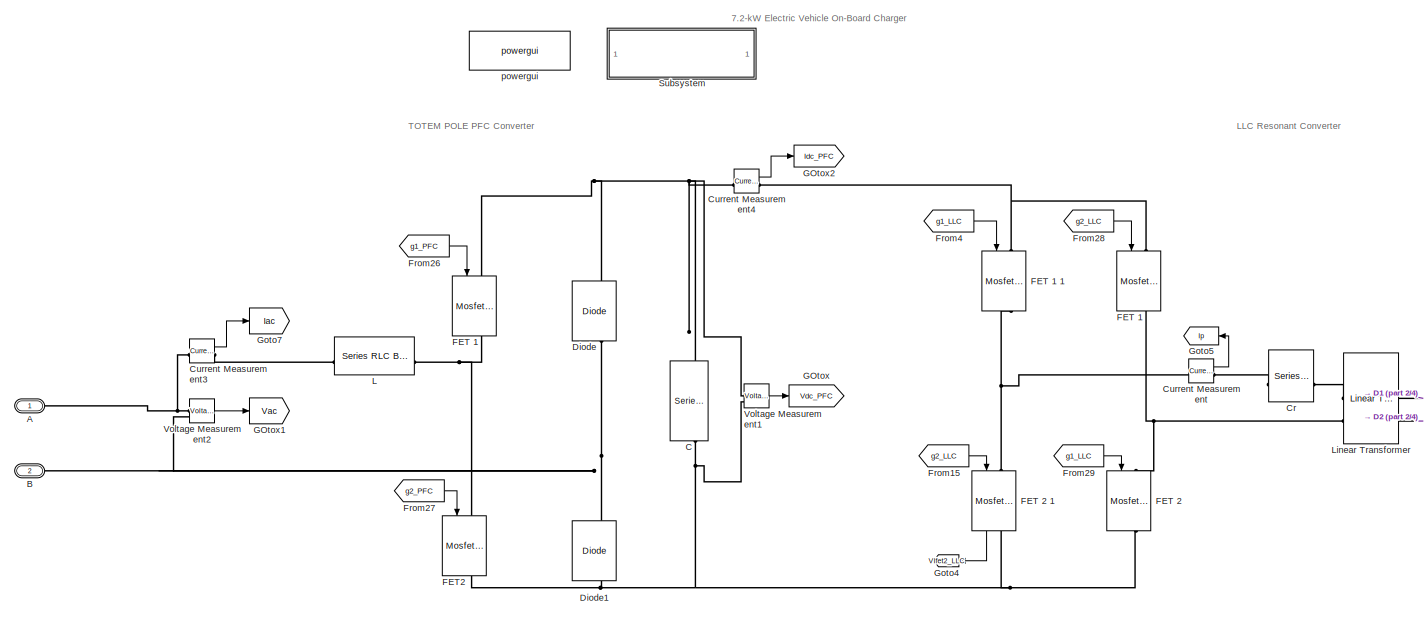
[diagram: root canvas - part 1/4, top left region]
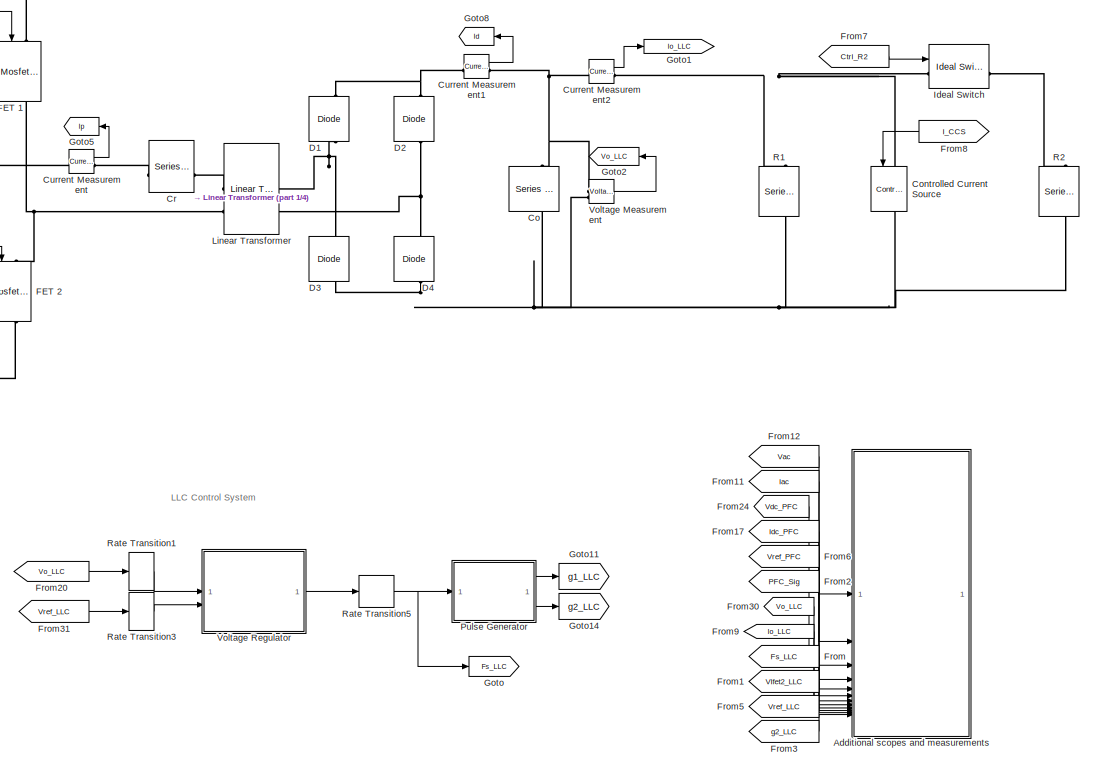
[diagram: root canvas - part 2/4, middle right region]
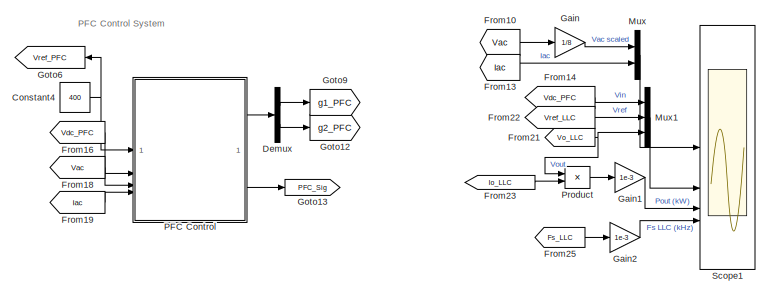
[diagram: root canvas - part 3/4, bottom left region]
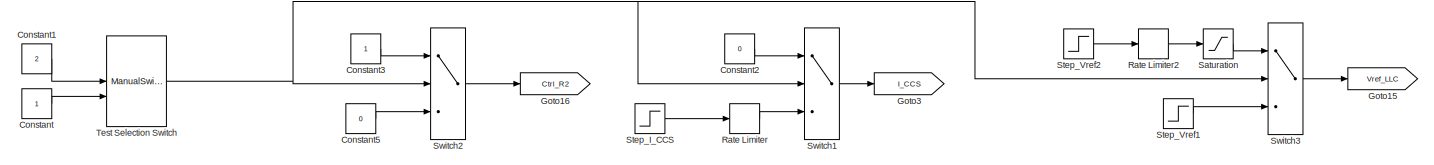
[diagram: root canvas - part 4/4, bottom center region]
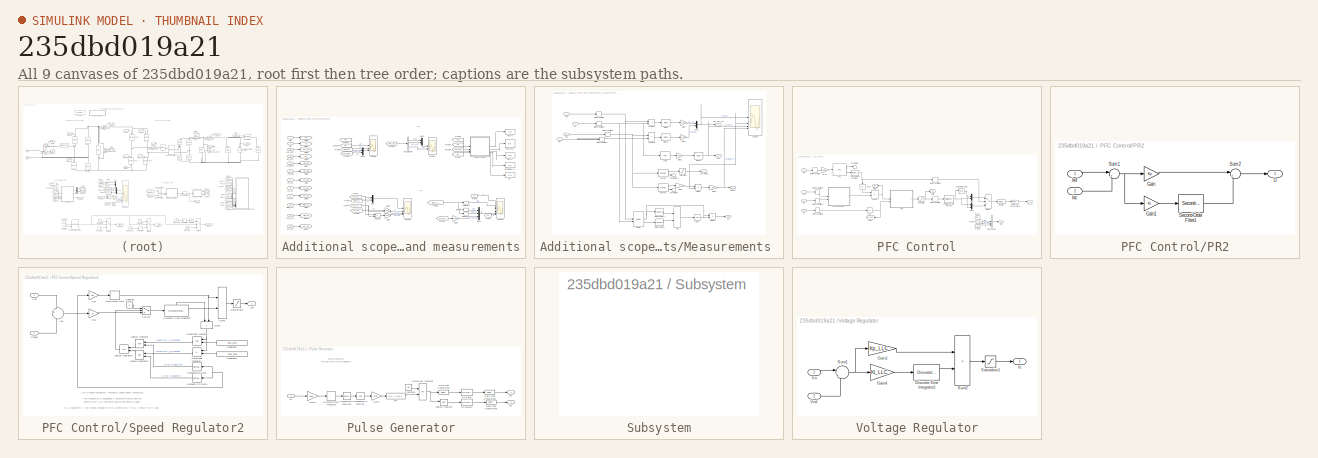
[diagram: thumbnail index - all 9 canvases of the model, root first then tree order]
MODEL slx_235dbd019a21
KIND model
CONFIG AbsTol = auto
CONFIG EnableMultiTasking = on
CONFIG FixedStep = Ts_Power
CONFIG MaxStep = 1e-7
CONFIG MinStep = auto
CONFIG PreLoadFcn = OBC_v1_data\n
CONFIG RelTol = 1e-4
CONFIG SampleTimeConstraint = Unconstrained
CONFIG SolverName = FixedStepDiscrete
CONFIG StartTime = 0.0
CONFIG StopTime = 0.4
BLOCK [PMIOPort] A
  Side = Left
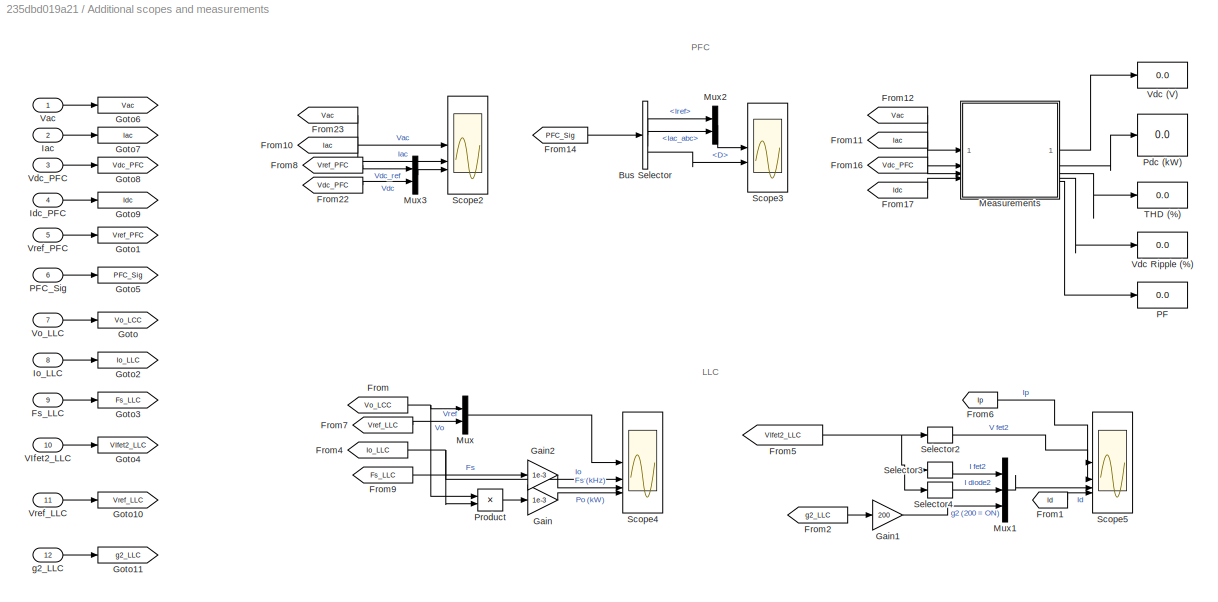
BLOCK [SubSystem] Additional scopes and measurements
BLOCK [BusSelector] Additional scopes and measurements/Bus Selector
  OutputSignals = Iref,Iac_abc,D
BLOCK [From] Additional scopes and measurements/From
  GotoTag = Vo_LCC
BLOCK [From] Additional scopes and measurements/From1
  GotoTag = Id
  TagVisibility = global
BLOCK [From] Additional scopes and measurements/From10
  GotoTag = Iac
BLOCK [From] Additional scopes and measurements/From11
  GotoTag = Iac
BLOCK [From] Additional scopes and measurements/From12
  GotoTag = Vac
BLOCK [From] Additional scopes and measurements/From14
  GotoTag = PFC_Sig
BLOCK [From] Additional scopes and measurements/From16
  GotoTag = Vdc_PFC
BLOCK [From] Additional scopes and measurements/From17
  GotoTag = Idc
BLOCK [From] Additional scopes and measurements/From2
  GotoTag = g2_LLC
BLOCK [From] Additional scopes and measurements/From22
  GotoTag = Vdc_PFC
BLOCK [From] Additional scopes and measurements/From23
  GotoTag = Vac
BLOCK [From] Additional scopes and measurements/From4
  GotoTag = Io_LLC
BLOCK [From] Additional scopes and measurements/From5
  GotoTag = VIfet2_LLC
BLOCK [From] Additional scopes and measurements/From6
  GotoTag = Ip
  TagVisibility = global
BLOCK [From] Additional scopes and measurements/From7
  GotoTag = Vref_LLC
BLOCK [From] Additional scopes and measurements/From8
  GotoTag = Vref_PFC
BLOCK [From] Additional scopes and measurements/From9
  GotoTag = Fs_LLC
BLOCK [Inport] Additional scopes and measurements/Fs_LLC
  Port = 9
BLOCK [Gain] Additional scopes and measurements/Gain
  Gain = 1e-3
BLOCK [Gain] Additional scopes and measurements/Gain1
  Gain = 200
BLOCK [Gain] Additional scopes and measurements/Gain2
  Gain = 1e-3
BLOCK [Goto] Additional scopes and measurements/Goto
  GotoTag = Vo_LCC
BLOCK [Goto] Additional scopes and measurements/Goto1
  GotoTag = Vref_PFC
BLOCK [Goto] Additional scopes and measurements/Goto10
  GotoTag = Vref_LLC
BLOCK [Goto] Additional scopes and measurements/Goto11
  GotoTag = g2_LLC
BLOCK [Goto] Additional scopes and measurements/Goto2
  GotoTag = Io_LLC
BLOCK [Goto] Additional scopes and measurements/Goto3
  GotoTag = Fs_LLC
BLOCK [Goto] Additional scopes and measurements/Goto4
  GotoTag = VIfet2_LLC
BLOCK [Goto] Additional scopes and measurements/Goto5
  GotoTag = PFC_Sig
BLOCK [Goto] Additional scopes and measurements/Goto6
  GotoTag = Vac
BLOCK [Goto] Additional scopes and measurements/Goto7
  GotoTag = Iac
BLOCK [Goto] Additional scopes and measurements/Goto8
  GotoTag = Vdc_PFC
BLOCK [Goto] Additional scopes and measurements/Goto9
  GotoTag = Idc
BLOCK [Inport] Additional scopes and measurements/Iac
  Port = 2
BLOCK [Inport] Additional scopes and measurements/Idc_PFC
  Port = 4
BLOCK [Inport] Additional scopes and measurements/Io_LLC
  Port = 8
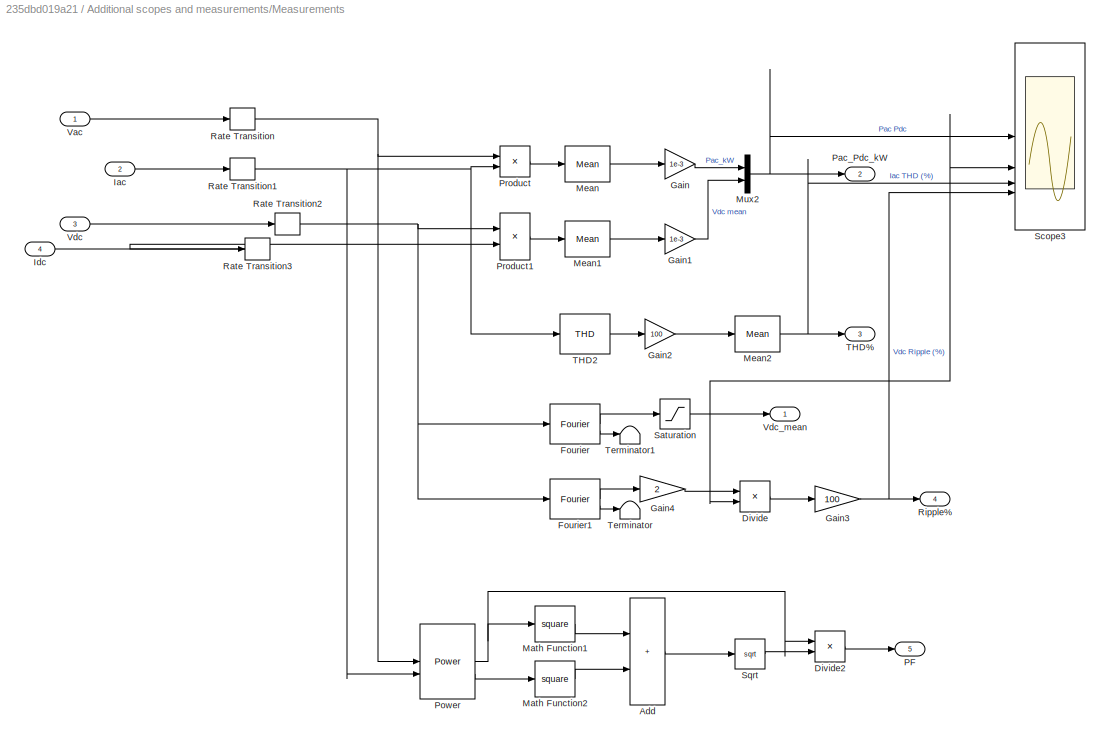
BLOCK [SubSystem] Additional scopes and measurements/Measurements 
BLOCK [Sum] Additional scopes and measurements/Measurements /Add
  IconShape = rectangular
BLOCK [Product] Additional scopes and measurements/Measurements /Divide
  Inputs = */
BLOCK [Product] Additional scopes and measurements/Measurements /Divide2
  Inputs = */
BLOCK [Reference] Additional scopes and measurements/Measurements /Fourier  REF=spsFourierLib/Fourier
  SourceBlock = spsFourierLib/Fourier
  SourceType = Fourier
BLOCK [Reference] Additional scopes and measurements/Measurements /Fourier1  REF=spsFourierLib/Fourier
  SourceBlock = spsFourierLib/Fourier
  SourceType = Fourier
BLOCK [Gain] Additional scopes and measurements/Measurements /Gain
  Gain = 1e-3
BLOCK [Gain] Additional scopes and measurements/Measurements /Gain1
  Gain = 1e-3
BLOCK [Gain] Additional scopes and measurements/Measurements /Gain2
  Gain = 100
BLOCK [Gain] Additional scopes and measurements/Measurements /Gain3
  Gain = 100
BLOCK [Gain] Additional scopes and measurements/Measurements /Gain4
  Gain = 2
BLOCK [Inport] Additional scopes and measurements/Measurements /Iac
  Port = 2
BLOCK [Inport] Additional scopes and measurements/Measurements /Idc
  Port = 4
BLOCK [Math] Additional scopes and measurements/Measurements /Math Function1
  Operator = square
BLOCK [Math] Additional scopes and measurements/Measurements /Math Function2
  Operator = square
BLOCK [Reference] Additional scopes and measurements/Measurements /Mean  REF=spsMeanLib/Mean
  SourceBlock = spsMeanLib/Mean
  SourceType = Mean
BLOCK [Reference] Additional scopes and measurements/Measurements /Mean1  REF=spsMeanLib/Mean
  SourceBlock = spsMeanLib/Mean
  SourceType = Mean
BLOCK [Reference] Additional scopes and measurements/Measurements /Mean2  REF=spsMeanLib/Mean
  SourceBlock = spsMeanLib/Mean
  SourceType = Mean
BLOCK [Mux] Additional scopes and measurements/Measurements /Mux2
  DisplayOption = bar
  Inputs = 2
BLOCK [Outport] Additional scopes and measurements/Measurements /PF
  Port = 5
BLOCK [Outport] Additional scopes and measurements/Measurements /Pac_Pdc_kW
  Port = 2
BLOCK [Reference] Additional scopes and measurements/Measurements /Power  REF=spsPowerLib/Power
  SourceBlock = spsPowerLib/Power
  SourceType = Power
BLOCK [Product] Additional scopes and measurements/Measurements /Product
BLOCK [Product] Additional scopes and measurements/Measurements /Product1
BLOCK [RateTransition] Additional scopes and measurements/Measurements /Rate Transition
  OutPortSampleTime = Ts_Control
BLOCK [RateTransition] Additional scopes and measurements/Measurements /Rate Transition1
  OutPortSampleTime = Ts_Control
BLOCK [RateTransition] Additional scopes and measurements/Measurements /Rate Transition2
  OutPortSampleTime = Ts_Control
BLOCK [RateTransition] Additional scopes and measurements/Measurements /Rate Transition3
  OutPortSampleTime = Ts_Control
BLOCK [Outport] Additional scopes and measurements/Measurements /Ripple%
  Port = 4
BLOCK [Saturate] Additional scopes and measurements/Measurements /Saturation
  LowerLimit = eps
  UpperLimit = inf
BLOCK [Scope] Additional scopes and measurements/Measurements /Scope3
  Floating = off
  NumInputPorts = 4
  ScopeSpecificationString = Simulink.scopes.TimeScopeBlockCfg('CurrentConfiguration', extmgr.ConfigurationSet(extmgr.Configuration('Core','General UI',true),extmgr.Configuration('Core','Source UI',true),extmgr.Configuration('Sources','WiredSimulink',true,'DataLoggingVariableName','ScopeData1'),extmgr.Configuration('Visuals','Time Domain',true,'SerializedDisplays',{struct('MinYLimReal','-1.32447','MaxYLimReal','11.92024','YLa...<+3480ch>
BLOCK [Sqrt] Additional scopes and measurements/Measurements /Sqrt
BLOCK [Outport] Additional scopes and measurements/Measurements /THD%
  Port = 3
BLOCK [Reference] Additional scopes and measurements/Measurements /THD2  REF=spsTHDLib/THD
  SourceBlock = spsTHDLib/THD
  SourceType = THD
BLOCK [Terminator] Additional scopes and measurements/Measurements /Terminator
BLOCK [Terminator] Additional scopes and measurements/Measurements /Terminator1
BLOCK [Inport] Additional scopes and measurements/Measurements /Vac
BLOCK [Inport] Additional scopes and measurements/Measurements /Vdc
  Port = 3
BLOCK [Outport] Additional scopes and measurements/Measurements /Vdc_mean
BLOCK [Mux] Additional scopes and measurements/Mux
  DisplayOption = bar
  Inputs = 2
BLOCK [Mux] Additional scopes and measurements/Mux1
  DisplayOption = bar
  Inputs = 3
BLOCK [Mux] Additional scopes and measurements/Mux2
  DisplayOption = bar
  Inputs = 2
BLOCK [Mux] Additional scopes and measurements/Mux3
  DisplayOption = bar
  Inputs = 2
BLOCK [Display] Additional scopes and measurements/PF
  Decimation = 100
  Format = bank
BLOCK [Inport] Additional scopes and measurements/PFC_Sig
  Port = 6
BLOCK [Display] Additional scopes and measurements/Pdc (kW) 
  Decimation = 100
  Format = bank
BLOCK [Product] Additional scopes and measurements/Product
BLOCK [Scope] Additional scopes and measurements/Scope2
  Floating = off
  NumInputPorts = 3
  ScopeSpecificationString = Simulink.scopes.TimeScopeBlockCfg('CurrentConfiguration', extmgr.ConfigurationSet(extmgr.Configuration('Core','General UI',true),extmgr.Configuration('Core','Source UI',true),extmgr.Configuration('Sources','WiredSimulink',true,'DataLoggingVariableName','ScopeData1'),extmgr.Configuration('Visuals','Time Domain',true,'SerializedDisplays',{struct('MinYLimReal','-424.26407','MaxYLimReal','424.26407','...<+2773ch>
BLOCK [Scope] Additional scopes and measurements/Scope3
  Floating = off
  NumInputPorts = 2
  ScopeSpecificationString = Simulink.scopes.TimeScopeBlockCfg('CurrentConfiguration', extmgr.ConfigurationSet(extmgr.Configuration('Core','General UI',true),extmgr.Configuration('Core','Source UI',true),extmgr.Configuration('Sources','WiredSimulink',true,'DataLoggingVariableName','ScopeData2'),extmgr.Configuration('Visuals','Time Domain',true,'SerializedDisplays',{struct('MinYLimReal','-9.06391','MaxYLimReal','81.57518','YLa...<+2057ch>
BLOCK [Scope] Additional scopes and measurements/Scope4
  Floating = off
  NumInputPorts = 4
  ScopeSpecificationString = Simulink.scopes.TimeScopeBlockCfg('CurrentConfiguration', extmgr.ConfigurationSet(extmgr.Configuration('Core','General UI',true),extmgr.Configuration('Core','Source UI',true),extmgr.Configuration('Sources','WiredSimulink',true,'DataLoggingVariableName','ScopeData2','DataLoggingDecimation','10'),extmgr.Configuration('Visuals','Time Domain',true,'SerializedDisplays',{struct('MinYLimReal','338.12925'...<+3546ch>
BLOCK [Scope] Additional scopes and measurements/Scope5
  Floating = off
  NumInputPorts = 4
  ScopeSpecificationString = Simulink.scopes.TimeScopeBlockCfg('CurrentConfiguration', extmgr.ConfigurationSet(extmgr.Configuration('Core','General UI',true),extmgr.Configuration('Core','Source UI',true),extmgr.Configuration('Sources','WiredSimulink',true,'DataLoggingVariableName','ScopeData1','DataLoggingDecimation','1','DataLoggingSaveFormat','StructureWithTime'),extmgr.Configuration('Visuals','Time Domain',true,'Serialized...<+3663ch>
BLOCK [Selector] Additional scopes and measurements/Selector2
  IndexOptions = Index vector (dialog)
  Indices = 2
  InputPortWidth = 3
  OutputSizes = 1
BLOCK [Selector] Additional scopes and measurements/Selector3
  IndexOptions = Index vector (dialog)
  Indices = 1
  InputPortWidth = 3
  OutputSizes = 1
BLOCK [Selector] Additional scopes and measurements/Selector4
  IndexOptions = Index vector (dialog)
  Indices = 3
  InputPortWidth = 3
  OutputSizes = 1
BLOCK [Display] Additional scopes and measurements/THD (%) 
  Decimation = 100
  Format = bank
BLOCK [Inport] Additional scopes and measurements/VIfet2_LLC
  Port = 10
BLOCK [Inport] Additional scopes and measurements/Vac
BLOCK [Display] Additional scopes and measurements/Vdc (V) 
  Decimation = 100
  Format = bank
BLOCK [Display] Additional scopes and measurements/Vdc Ripple (%)
  Decimation = 100
  Format = bank
BLOCK [Inport] Additional scopes and measurements/Vdc_PFC
  Port = 3
BLOCK [Inport] Additional scopes and measurements/Vo_LLC
  Port = 7
BLOCK [Inport] Additional scopes and measurements/Vref_LLC
  Port = 11
BLOCK [Inport] Additional scopes and measurements/Vref_PFC
  Port = 5
BLOCK [Inport] Additional scopes and measurements/g2_LLC
  Port = 12
BLOCK [PMIOPort] B
  Port = 2
  Side = Left
BLOCK [Reference] C  REF=spsSeriesRLCBranchLib/Series RLC Branch
  NameLocation = left
  SourceBlock = spsSeriesRLCBranchLib/Series RLC Branch
  SourceType = Series RLC Branch
BLOCK [Reference] Co  REF=spsSeriesRLCBranchLib/Series RLC Branch
  NameLocation = left
  SourceBlock = spsSeriesRLCBranchLib/Series RLC Branch
  SourceType = Series RLC Branch
BLOCK [Constant] Constant
BLOCK [Constant] Constant1
  Value = 2
BLOCK [Constant] Constant2
  Value = 0
BLOCK [Constant] Constant3
BLOCK [Constant] Constant4
  Value = 400
BLOCK [Constant] Constant5
  Value = 0
BLOCK [Reference] Controlled Current Source  REF=spsControlledCurrentSourceLib/Controlled Current Source
  NameLocation = right
  SourceBlock = spsControlledCurrentSourceLib/Controlled Current Source
  SourceType = Controlled Current Source
BLOCK [Reference] Cr  REF=spsSeriesRLCBranchLib/Series RLC Branch
  NameLocation = top
  SourceBlock = spsSeriesRLCBranchLib/Series RLC Branch
  SourceType = Series RLC Branch
BLOCK [Reference] Current Measurement  REF=spsCurrentMeasurementLib/Current Measurement
  SourceBlock = spsCurrentMeasurementLib/Current Measurement
  SourceType = Current Measurement
  UserDataPersistent = on
BLOCK [Reference] Current Measurement1  REF=spsCurrentMeasurementLib/Current Measurement
  SourceBlock = spsCurrentMeasurementLib/Current Measurement
  SourceType = Current Measurement
  UserDataPersistent = on
BLOCK [Reference] Current Measurement2  REF=spsCurrentMeasurementLib/Current Measurement
  SourceBlock = spsCurrentMeasurementLib/Current Measurement
  SourceType = Current Measurement
  UserDataPersistent = on
BLOCK [Reference] Current Measurement3  REF=spsCurrentMeasurementLib/Current Measurement
  SourceBlock = spsCurrentMeasurementLib/Current Measurement
  SourceType = Current Measurement
  UserDataPersistent = on
BLOCK [Reference] Current Measurement4  REF=spsCurrentMeasurementLib/Current Measurement
  SourceBlock = spsCurrentMeasurementLib/Current Measurement
  SourceType = Current Measurement
  UserDataPersistent = on
BLOCK [Reference] D1  REF=spsDiodeLib/Diode
  NameLocation = left
  SourceBlock = spsDiodeLib/Diode
  SourceType = Diode
BLOCK [Reference] D2  REF=spsDiodeLib/Diode
  NameLocation = left
  SourceBlock = spsDiodeLib/Diode
  SourceType = Diode
BLOCK [Reference] D3  REF=spsDiodeLib/Diode
  NameLocation = left
  SourceBlock = spsDiodeLib/Diode
  SourceType = Diode
BLOCK [Reference] D4  REF=spsDiodeLib/Diode
  NameLocation = left
  SourceBlock = spsDiodeLib/Diode
  SourceType = Diode
BLOCK [Demux] Demux
  Outputs = 2
BLOCK [Reference] Diode  REF=spsDiodeLib/Diode
  NameLocation = right
  SourceBlock = spsDiodeLib/Diode
  SourceType = Diode
BLOCK [Reference] Diode1  REF=spsDiodeLib/Diode
  NameLocation = right
  SourceBlock = spsDiodeLib/Diode
  SourceType = Diode
BLOCK [Reference] FET 1  REF=MyLibrary/Mosfet (custom)
  NameLocation = left
  SourceBlock = MyLibrary/Mosfet (custom)
  SourceType = Custom FET
BLOCK [Reference] FET 1   REF=MyLibrary/Mosfet (custom)
  NameLocation = left
  SourceBlock = MyLibrary/Mosfet (custom)
  SourceType = Custom FET
BLOCK [Reference] FET 1 1  REF=MyLibrary/Mosfet (custom)
  NameLocation = left
  SourceBlock = MyLibrary/Mosfet (custom)
  SourceType = Custom FET
BLOCK [Reference] FET 2   REF=MyLibrary/Mosfet (custom)
  NameLocation = left
  SourceBlock = MyLibrary/Mosfet (custom)
  SourceType = Custom FET
BLOCK [Reference] FET 2 1  REF=MyLibrary/Mosfet (custom)
  NameLocation = left
  SourceBlock = MyLibrary/Mosfet (custom)
  SourceType = Custom FET
BLOCK [Reference] FET2  REF=MyLibrary/Mosfet (custom)
  NameLocation = left
  SourceBlock = MyLibrary/Mosfet (custom)
  SourceType = Custom FET
BLOCK [From] From
  GotoTag = Fs_LLC
BLOCK [From] From1
  GotoTag = VIfet2_LLC
BLOCK [From] From10
  GotoTag = Vac
BLOCK [From] From11
  GotoTag = Iac
BLOCK [From] From12
  GotoTag = Vac
BLOCK [From] From13
  GotoTag = Iac
BLOCK [From] From14
  GotoTag = Vdc_PFC
BLOCK [From] From15
  GotoTag = g2_LLC
  TagVisibility = global
BLOCK [From] From16
  GotoTag = Vdc_PFC
BLOCK [From] From17
  GotoTag = Idc_PFC
BLOCK [From] From18
  GotoTag = Vac
BLOCK [From] From19
  GotoTag = Iac
BLOCK [From] From2
  GotoTag = PFC_Sig
BLOCK [From] From20
  GotoTag = Vo_LLC
  TagVisibility = global
BLOCK [From] From21
  GotoTag = Vo_LLC
  TagVisibility = global
BLOCK [From] From22
  GotoTag = Vref_LLC
BLOCK [From] From23
  GotoTag = Io_LLC
BLOCK [From] From24
  GotoTag = Vdc_PFC
BLOCK [From] From25
  GotoTag = Fs_LLC
BLOCK [From] From26
  GotoTag = g1_PFC
BLOCK [From] From27
  GotoTag = g2_PFC
BLOCK [From] From28
  GotoTag = g2_LLC
  TagVisibility = global
BLOCK [From] From29
  GotoTag = g1_LLC
  TagVisibility = global
BLOCK [From] From3
  GotoTag = g2_LLC
  TagVisibility = global
BLOCK [From] From30
  GotoTag = Vo_LLC
  TagVisibility = global
BLOCK [From] From31
  GotoTag = Vref_LLC
BLOCK [From] From4
  GotoTag = g1_LLC
  TagVisibility = global
BLOCK [From] From5
  GotoTag = Vref_LLC
BLOCK [From] From6
  GotoTag = Vref_PFC
BLOCK [From] From7
  GotoTag = Ctrl_R2
BLOCK [From] From8
  GotoTag = I_CCS
BLOCK [From] From9
  GotoTag = Io_LLC
BLOCK [Goto] GOtox
  GotoTag = Vdc_PFC
BLOCK [Goto] GOtox1
  GotoTag = Vac
BLOCK [Goto] GOtox2
  GotoTag = Idc_PFC
BLOCK [Gain] Gain
  Gain = 1/8
BLOCK [Gain] Gain1
  Gain = 1e-3
BLOCK [Gain] Gain2
  Gain = 1e-3
BLOCK [Goto] Goto
  GotoTag = Fs_LLC
BLOCK [Goto] Goto1
  GotoTag = Io_LLC
BLOCK [Goto] Goto11
  GotoTag = g1_LLC
  TagVisibility = global
BLOCK [Goto] Goto12
  GotoTag = g2_PFC
BLOCK [Goto] Goto13
  GotoTag = PFC_Sig
BLOCK [Goto] Goto14
  GotoTag = g2_LLC
  TagVisibility = global
BLOCK [Goto] Goto15
  GotoTag = Vref_LLC
BLOCK [Goto] Goto16
  GotoTag = Ctrl_R2
BLOCK [Goto] Goto2
  GotoTag = Vo_LLC
  TagVisibility = global
BLOCK [Goto] Goto3
  GotoTag = I_CCS
BLOCK [Goto] Goto4
  GotoTag = VIfet2_LLC
BLOCK [Goto] Goto5
  GotoTag = Ip
  TagVisibility = global
BLOCK [Goto] Goto6
  GotoTag = Vref_PFC
BLOCK [Goto] Goto7
  GotoTag = Iac
BLOCK [Goto] Goto8
  GotoTag = Id
  TagVisibility = global
BLOCK [Goto] Goto9
  GotoTag = g1_PFC
BLOCK [Reference] Ideal Switch  REF=spsIdealSwitchLib/Ideal Switch
  SourceBlock = spsIdealSwitchLib/Ideal Switch
  SourceType = Ideal Switch
BLOCK [Reference] L  REF=spsSeriesRLCBranchLib/Series RLC Branch
  SourceBlock = spsSeriesRLCBranchLib/Series RLC Branch
  SourceType = Series RLC Branch
BLOCK [Reference] Linear Transformer  REF=spsLinearTransformerLib/Linear Transformer
  SourceBlock = spsLinearTransformerLib/Linear Transformer
  SourceType = Linear Transformer
BLOCK [Mux] Mux
  DisplayOption = bar
  Inputs = 2
BLOCK [Mux] Mux1
  DisplayOption = bar
  Inputs = 3
BLOCK [SubSystem] PFC Control
BLOCK [Abs] PFC Control/AbsI
  SaturateOnIntegerOverflow = off
BLOCK [Abs] PFC Control/AbsV
  NameLocation = right
  SaturateOnIntegerOverflow = off
BLOCK [BusCreator] PFC Control/Bus Creator
  DisplayOption = bar
  InheritFromInputs = on
  Inputs = 3
BLOCK [DataTypeConversion] PFC Control/Data Type Conversion2
  OutDataTypeStr = double
  RndMeth = Floor
  SaturateOnIntegerOverflow = off
BLOCK [From] PFC Control/From
  GotoTag = Iref
BLOCK [From] PFC Control/From1
  GotoTag = Iac_abs
BLOCK [From] PFC Control/From2
  GotoTag = D
BLOCK [Goto] PFC Control/Goto
  GotoTag = D
BLOCK [Goto] PFC Control/Goto1
  GotoTag = Iref
BLOCK [Goto] PFC Control/Goto2
  GotoTag = Iac_abs
BLOCK [Inport] PFC Control/Iac
  Port = 4
BLOCK [Logic] PFC Control/Logical Operator
  AllPortsSameDT = off
  Operator = NOT
  OutDataTypeStr = float('double')
BLOCK [Mux] PFC Control/Mux
  DisplayOption = bar
  Inputs = 2
BLOCK [Mux] PFC Control/Mux2
  DisplayOption = bar
  Inputs = 2
BLOCK [Reference] PFC Control/On Delay  REF=spsOnDelayLib/On Delay
  NameLocation = top
  SourceBlock = spsOnDelayLib/On Delay
  SourceType = On/Off Delay
BLOCK [Reference] PFC Control/PLL  REF=spsPLLLib/PLL
  SourceBlock = spsPLLLib/PLL
  SourceType = PLL
BLOCK [SubSystem] PFC Control/PR2
BLOCK [Outport] PFC Control/PR2/D
BLOCK [Gain] PFC Control/PR2/Gain
  Gain = Kp
BLOCK [Gain] PFC Control/PR2/Gain1
  Gain = Kr
BLOCK [Inport] PFC Control/PR2/Iac
  Port = 2
BLOCK [Inport] PFC Control/PR2/Iref
BLOCK [Reference] PFC Control/PR2/Second-Order Filter1  REF=spsSecondOrderFilterLib/Second-Order
Filter
  SourceBlock = spsSecondOrderFilterLib/Second-Order\nFilter
  SourceType = Second-Order Filter
BLOCK [Sum] PFC Control/PR2/Sum1
  Inputs = |+-
BLOCK [Sum] PFC Control/PR2/Sum2
  Inputs = |++
BLOCK [Reference] PFC Control/PWM Generator (DC-DC)  REF=spsPWMGeneratorDCDCLib/PWM Generator
(DC-DC)
  SourceBlock = spsPWMGeneratorDCDCLib/PWM Generator\n(DC-DC)
  SourceType = PWM Generator (DC-DC)
BLOCK [Product] PFC Control/Prod1
BLOCK [RateTransition] PFC Control/Rate Transition
  OutPortSampleTime = Ts_Control
BLOCK [RateTransition] PFC Control/Rate Transition1
  OutPortSampleTime = Ts_Power
BLOCK [RateTransition] PFC Control/Rate Transition2
  OutPortSampleTime = Ts_Power
BLOCK [RateTransition] PFC Control/Rate Transition3
  OutPortSampleTime = Ts_Control
BLOCK [RateTransition] PFC Control/Rate Transition4
  OutPortSampleTime = Ts_Control
BLOCK [RateTransition] PFC Control/Rate Transition5
  OutPortSampleTime = Ts_Control
BLOCK [Saturate] PFC Control/Saturation
  LowerLimit = 0
  UpperLimit = 1
BLOCK [Outport] PFC Control/Sig
  Port = 2
BLOCK [SubSystem] PFC Control/Speed Regulator2
  DialogController = POWERSYS.PowerSysDialog
BLOCK [Sum] PFC Control/Speed Regulator2/Add
  Inputs = +|-
  NameLocation = top
BLOCK [Reference] PFC Control/Speed Regulator2/Compare To Zero  REF=simulink/Logic and Bit
Operations/Compare
To Zero
  SourceBlock = simulink/Logic and Bit\nOperations/Compare\nTo Zero
  SourceType = Compare To Zero
BLOCK [Reference] PFC Control/Speed Regulator2/Compare To Zero1  REF=simulink/Logic and Bit
Operations/Compare
To Zero
  SourceBlock = simulink/Logic and Bit\nOperations/Compare\nTo Zero
  SourceType = Compare To Zero
BLOCK [Constant] PFC Control/Speed Regulator2/Constant
  Value = 0
BLOCK [Constant] PFC Control/Speed Regulator2/Constant1
  Value = Limit_wreg
BLOCK [Constant] PFC Control/Speed Regulator2/Constant2
  Value = -Limit_wreg
BLOCK [DiscreteIntegrator] PFC Control/Speed Regulator2/Discrete-Time Integrator
  ICPrevOutput = DiscIntNeverNeededParam
  ICPrevScaledInput = DiscIntNeverNeededParam
  InitialCondition = Init
  IntegratorMethod = Integration: Trapezoidal
  LimitOutput = on
  LowerSaturationLimit = -Limit_wreg
  SampleTime = Ts
  ShowStatePort = on
  UpperSaturationLimit = Limit_wreg
BLOCK [Gain] PFC Control/Speed Regulator2/Kp4
  Gain = Kp
  OutDataTypeStr = Inherit: Same as input
  ParamDataTypeStr = Inherit: Same as input
  SampleTime = Ts
  SaturateOnIntegerOverflow = on
BLOCK [Gain] PFC Control/Speed Regulator2/Kp5
  Gain = Ki
  OutDataTypeStr = Inherit: Same as input
  ParamDataTypeStr = Inherit: Same as input
  SampleTime = Ts
  SaturateOnIntegerOverflow = on
BLOCK [Logic] PFC Control/Speed Regulator2/Logical Operator
  AllPortsSameDT = off
  OutDataTypeStr = boolean
BLOCK [Logic] PFC Control/Speed Regulator2/Logical Operator1
  AllPortsSameDT = off
  OutDataTypeStr = boolean
BLOCK [Logic] PFC Control/Speed Regulator2/Logical Operator2
  AllPortsSameDT = off
  Operator = OR
  OutDataTypeStr = boolean
BLOCK [Outport] PFC Control/Speed Regulator2/Out
  InitialOutput = 0
  SampleTime = Ts
  VectorParamsAs1DForOutWhenUnconnected = off
BLOCK [RelationalOperator] PFC Control/Speed Regulator2/Relational Operator
  InputSameDT = off
  OutDataTypeStr = boolean
BLOCK [RelationalOperator] PFC Control/Speed Regulator2/Relational Operator1
  InputSameDT = off
  Operator = <=
  OutDataTypeStr = boolean
BLOCK [Saturate] PFC Control/Speed Regulator2/Saturation2
  LowerLimit = -Limit_wreg
  NameLocation = top
  SampleTime = Ts
  UpperLimit = Limit_wreg
BLOCK [Sum] PFC Control/Speed Regulator2/Sum1
  IconShape = rectangular
  InputSameDT = on
  NameLocation = left
  OutDataTypeStr = Inherit: Same as first input
  SampleTime = Ts
  SaturateOnIntegerOverflow = on
BLOCK [Sum] PFC Control/Speed Regulator2/Sum6
  IconShape = rectangular
  InputSameDT = on
  OutDataTypeStr = Inherit: Same as first input
  SampleTime = Ts
  SaturateOnIntegerOverflow = on
BLOCK [Switch] PFC Control/Speed Regulator2/Switch
  Criteria = u2 > Threshold
  InputSameDT = off
  SaturateOnIntegerOverflow = off
BLOCK [Inport] PFC Control/Speed Regulator2/Vmeas
  Port = 2
  PortDimensions = 1
BLOCK [Inport] PFC Control/Speed Regulator2/Vref
  PortDimensions = 1
BLOCK [ZeroOrderHold] PFC Control/Speed Regulator2/Zero-Order Hold
  SampleTime = Ts
BLOCK [Switch] PFC Control/Switch1
  InputSameDT = off
  SaturateOnIntegerOverflow = off
BLOCK [Terminator] PFC Control/Terminator
BLOCK [Trigonometry] PFC Control/Trigonometric Function7
  NameLocation = top
BLOCK [Inport] PFC Control/Vac
  Port = 3
BLOCK [Inport] PFC Control/Vdc
  Port = 2
BLOCK [Inport] PFC Control/Vref
BLOCK [Outport] PFC Control/g1_g2
  PortDimensions = 2
BLOCK [Gain] PFC Control/to-pu
  Gain = 1/(Vnom_ac*sqrt(2))
BLOCK [Product] Product
BLOCK [SubSystem] Pulse Generator
BLOCK [Constant] Pulse Generator/Constant1
  Value = 0.5
BLOCK [DataTypeConversion] Pulse Generator/Data Type Conversion1
  OutDataTypeStr = double
  RndMeth = Floor
  SaturateOnIntegerOverflow = off
BLOCK [DataTypeConversion] Pulse Generator/Data Type Conversion2
  OutDataTypeStr = double
  RndMeth = Floor
  SaturateOnIntegerOverflow = off
BLOCK [DataTypeConversion] Pulse Generator/Data Type Conversion3
  OutDataTypeStr = double
  RndMeth = Floor
  SaturateOnIntegerOverflow = off
BLOCK [DiscreteIntegrator] Pulse Generator/Discrete-Time Integrator
  ICPrevOutput = DiscIntNeverNeededParam
  ICPrevScaledInput = DiscIntNeverNeededParam
  InitialConditionSetting = Auto
  SampleTime = Ts_Power
BLOCK [Fcn] Pulse Generator/Fcn
  Expr = 0.5 * ( u(1)+1 )
BLOCK [Inport] Pulse Generator/Fs
BLOCK [Gain] Pulse Generator/Gain1
  Gain = 2/pi
  OutDataTypeStr = Inherit: Same as input
  ParamDataTypeStr = Inherit: Same as input
  SaturateOnIntegerOverflow = on
BLOCK [Gain] Pulse Generator/Gain2
  Gain = 2*pi
  OutDataTypeStr = Inherit: Same as input
  ParamDataTypeStr = Inherit: Same as input
  SaturateOnIntegerOverflow = on
BLOCK [Logic] Pulse Generator/Logical Operator
  AllPortsSameDT = off
  Operator = NOT
  OutDataTypeStr = float('double')
BLOCK [Reference] Pulse Generator/On Delay  REF=spsOnDelayLib/On Delay
  NameLocation = top
  SourceBlock = spsOnDelayLib/On Delay
  SourceType = On/Off Delay
BLOCK [Reference] Pulse Generator/On Delay1  REF=spsOnDelayLib/On Delay
  NameLocation = top
  SourceBlock = spsOnDelayLib/On Delay
  SourceType = On/Off Delay
BLOCK [RelationalOperator] Pulse Generator/Relational Operator
  InputSameDT = off
  OutDataTypeStr = boolean
BLOCK [Trigonometry] Pulse Generator/Trigonometric Function
  Operator = asin
BLOCK [Trigonometry] Pulse Generator/Trigonometric Function3
BLOCK [Outport] Pulse Generator/g1
  VectorParamsAs1DForOutWhenUnconnected = off
BLOCK [Outport] Pulse Generator/g2
  Port = 2
  VectorParamsAs1DForOutWhenUnconnected = off
BLOCK [Reference] R1  REF=spsSeriesRLCBranchLib/Series RLC Branch
  NameLocation = right
  SourceBlock = spsSeriesRLCBranchLib/Series RLC Branch
  SourceType = Series RLC Branch
BLOCK [Reference] R2  REF=spsSeriesRLCBranchLib/Series RLC Branch
  NameLocation = right
  SourceBlock = spsSeriesRLCBranchLib/Series RLC Branch
  SourceType = Series RLC Branch
BLOCK [RateLimiter] Rate Limiter
  FallingSlewLimit = -200
  InitialCondition = 3
  RisingSlewLimit = 200
  SampleTimeMode = inherited
BLOCK [RateLimiter] Rate Limiter2
  FallingSlewLimit = -200*5
  InitialCondition = 250
  RisingSlewLimit = 200*5
  SampleTimeMode = inherited
BLOCK [RateTransition] Rate Transition1
  NameLocation = right
  OutPortSampleTime = Ts_Control
BLOCK [RateTransition] Rate Transition3
  NameLocation = right
  OutPortSampleTime = Ts_Control
BLOCK [RateTransition] Rate Transition5
  InitialCondition = 200e3
  OutPortSampleTime = Ts_Power
BLOCK [Saturate] Saturation
  LowerLimit = Vref_LCC_min
  UpperLimit = Vref_LCC_max
BLOCK [Scope] Scope1
  Floating = off
  NumInputPorts = 4
  ScopeSpecificationString = Simulink.scopes.TimeScopeBlockCfg('CurrentConfiguration', extmgr.ConfigurationSet(extmgr.Configuration('Core','General UI',true),extmgr.Configuration('Core','Source UI',true),extmgr.Configuration('Sources','WiredSimulink',true,'DataLoggingVariableName','ScopeData1'),extmgr.Configuration('Visuals','Time Domain',true,'SerializedDisplays',{struct('MinYLimReal','-60.31918','MaxYLimReal','63.13621','YL...<+3512ch>
BLOCK [Step] Step_I_CCS
  After = 18
  Before = 3
  SampleTime = Ts_Power
  Time = 0.2
BLOCK [Step] Step_Vref1
  After = 400
  Before = 350
  SampleTime = Ts_Power
  Time = 0.1
BLOCK [Step] Step_Vref2
  After = 450
  Before = 250
  SampleTime = Ts_Power
  Time = 0.1
BLOCK [SubSystem] Subsystem
  OpenFcn = edit('OBC_v1_data');
BLOCK [Switch] Switch1
  Criteria = u2 > Threshold
  InputSameDT = off
  SaturateOnIntegerOverflow = off
  Threshold = 1.5
BLOCK [Switch] Switch2
  Criteria = u2 > Threshold
  InputSameDT = off
  SaturateOnIntegerOverflow = off
  Threshold = 1.5
BLOCK [Switch] Switch3
  Criteria = u2 > Threshold
  InputSameDT = off
  SaturateOnIntegerOverflow = off
  Threshold = 1.5
BLOCK [ManualSwitch] Test Selection Switch
  CurrentSetting = 0
BLOCK [Reference] Voltage Measurement  REF=spsVoltageMeasurementLib/Voltage Measurement
  SourceBlock = spsVoltageMeasurementLib/Voltage Measurement
  SourceType = Voltage Measurement
  UserDataPersistent = on
BLOCK [Reference] Voltage Measurement1  REF=spsVoltageMeasurementLib/Voltage Measurement
  SourceBlock = spsVoltageMeasurementLib/Voltage Measurement
  SourceType = Voltage Measurement
  UserDataPersistent = on
BLOCK [Reference] Voltage Measurement2  REF=spsVoltageMeasurementLib/Voltage Measurement
  SourceBlock = spsVoltageMeasurementLib/Voltage Measurement
  SourceType = Voltage Measurement
  UserDataPersistent = on
BLOCK [SubSystem] Voltage Regulator
BLOCK [DiscreteIntegrator] Voltage Regulator/Discrete-Time Integrator2
  ICPrevOutput = DiscIntNeverNeededParam
  ICPrevScaledInput = DiscIntNeverNeededParam
  InitialCondition = fs_LCC_min
  InitialConditionSetting = Auto
  LimitOutput = on
  LowerSaturationLimit = fs_LCC_min
  SampleTime = Ts_Control
  UpperSaturationLimit = fs_LCC_max
BLOCK [Gain] Voltage Regulator/Gain1
  Gain = Kp_LLC
  OutDataTypeStr = Inherit: Same as input
  ParamDataTypeStr = Inherit: Same as input
  SaturateOnIntegerOverflow = on
BLOCK [Gain] Voltage Regulator/Gain4
  Gain = Ki_LLC
  OutDataTypeStr = Inherit: Same as input
  ParamDataTypeStr = Inherit: Same as input
  SaturateOnIntegerOverflow = on
BLOCK [Saturate] Voltage Regulator/Saturation1
  LowerLimit = fs_LCC_min
  UpperLimit = fs_LCC_max
BLOCK [Sum] Voltage Regulator/Sum1
  InputSameDT = on
  Inputs = |+-
  NameLocation = top
  OutDataTypeStr = Inherit: Same as first input
  SaturateOnIntegerOverflow = on
BLOCK [Sum] Voltage Regulator/Sum2
  IconShape = rectangular
  InputSameDT = on
  OutDataTypeStr = Inherit: Same as first input
  SaturateOnIntegerOverflow = on
BLOCK [Inport] Voltage Regulator/Vo
  NameLocation = top
BLOCK [Inport] Voltage Regulator/Vref
  Port = 2
BLOCK [Outport] Voltage Regulator/fs
  VectorParamsAs1DForOutWhenUnconnected = off
BLOCK [Reference] powergui  REF=spspowerguiLib/powergui
  Priority = 1
  SourceBlock = spspowerguiLib/powergui
  SourceType = PSB option menu block
ANNOTATION (root): TOTEM POLE PFC Converter
ANNOTATION (root): LLC Control System
ANNOTATION (root): PFC Control System
ANNOTATION (root): LLC Resonant Converter
ANNOTATION (root): 7.2-kW Electric Vehicle On-Board Charger
ANNOTATION Additional scopes and measurements: LLC
ANNOTATION Additional scopes and measurements: PFC
ANNOTATION PFC Control/Speed Regulator2: Anti-windup mechanism: Method of conditionnal integration The integration is suspended if saturation occurs and the control error is of the same sign as the control signal. [1] L.Rundqwist, "Anti-Reset Windup for PID Controllers," Ph.D. Thesis TRFT-1033, Departement of Automatic Control, Lund Institute of Technology, Lund, Sweeden, 1991.
ANNOTATION Pulse Generator: Pulse Generator (Variable Switching Frequency)
LINE Additional scopes and measurements/Bus Selector:1 -> Additional scopes and measurements/Mux2:1
LINE Additional scopes and measurements/Bus Selector:2 -> Additional scopes and measurements/Mux2:2
LINE Additional scopes and measurements/Bus Selector:3 -> Additional scopes and measurements/Scope3:2
LINE Additional scopes and measurements/From10:1 -> Additional scopes and measurements/Scope2:2
LINE Additional scopes and measurements/From11:1 -> Additional scopes and measurements/Measurements :2
LINE Additional scopes and measurements/From12:1 -> Additional scopes and measurements/Measurements :1
LINE Additional scopes and measurements/From14:1 -> Additional scopes and measurements/Bus Selector:1
LINE Additional scopes and measurements/From16:1 -> Additional scopes and measurements/Measurements :3
LINE Additional scopes and measurements/From17:1 -> Additional scopes and measurements/Measurements :4
LINE Additional scopes and measurements/From1:1 -> Additional scopes and measurements/Scope5:4
LINE Additional scopes and measurements/From22:1 -> Additional scopes and measurements/Mux3:2
LINE Additional scopes and measurements/From23:1 -> Additional scopes and measurements/Scope2:1
LINE Additional scopes and measurements/From2:1 -> Additional scopes and measurements/Gain1:1
NET Additional scopes and measurements/From4:1 -> Additional scopes and measurements/Product:2, Additional scopes and measurements/Scope4:2
NET Additional scopes and measurements/From5:1 -> Additional scopes and measurements/Selector2:1, Additional scopes and measurements/Selector3:1, Additional scopes and measurements/Selector4:1
LINE Additional scopes and measurements/From6:1 -> Additional scopes and measurements/Scope5:1
LINE Additional scopes and measurements/From7:1 -> Additional scopes and measurements/Mux:2
LINE Additional scopes and measurements/From8:1 -> Additional scopes and measurements/Mux3:1
LINE Additional scopes and measurements/From9:1 -> Additional scopes and measurements/Gain2:1
NET Additional scopes and measurements/From:1 -> Additional scopes and measurements/Mux:1, Additional scopes and measurements/Product:1
LINE Additional scopes and measurements/Fs_LLC:1 -> Additional scopes and measurements/Goto3:1
LINE Additional scopes and measurements/Gain1:1 -> Additional scopes and measurements/Mux1:3
LINE Additional scopes and measurements/Gain2:1 -> Additional scopes and measurements/Scope4:3
LINE Additional scopes and measurements/Gain:1 -> Additional scopes and measurements/Scope4:4
LINE Additional scopes and measurements/Iac:1 -> Additional scopes and measurements/Goto7:1
LINE Additional scopes and measurements/Idc_PFC:1 -> Additional scopes and measurements/Goto9:1
LINE Additional scopes and measurements/Io_LLC:1 -> Additional scopes and measurements/Goto2:1
LINE Additional scopes and measurements/Measurements /Add:1 -> Additional scopes and measurements/Measurements /Sqrt:1
LINE Additional scopes and measurements/Measurements /Divide2:1 -> Additional scopes and measurements/Measurements /PF:1
LINE Additional scopes and measurements/Measurements /Divide:1 -> Additional scopes and measurements/Measurements /Gain3:1
LINE Additional scopes and measurements/Measurements /Fourier1:1 -> Additional scopes and measurements/Measurements /Gain4:1
LINE Additional scopes and measurements/Measurements /Fourier1:2 -> Additional scopes and measurements/Measurements /Terminator:1
LINE Additional scopes and measurements/Measurements /Fourier:1 -> Additional scopes and measurements/Measurements /Saturation:1
LINE Additional scopes and measurements/Measurements /Fourier:2 -> Additional scopes and measurements/Measurements /Terminator1:1
LINE Additional scopes and measurements/Measurements /Gain1:1 -> Additional scopes and measurements/Measurements /Mux2:2
LINE Additional scopes and measurements/Measurements /Gain2:1 -> Additional scopes and measurements/Measurements /Mean2:1
NET Additional scopes and measurements/Measurements /Gain3:1 -> Additional scopes and measurements/Measurements /Ripple%:1, Additional scopes and measurements/Measurements /Scope3:4
LINE Additional scopes and measurements/Measurements /Gain4:1 -> Additional scopes and measurements/Measurements /Divide:1
LINE Additional scopes and measurements/Measurements /Gain:1 -> Additional scopes and measurements/Measurements /Mux2:1
LINE Additional scopes and measurements/Measurements /Iac:1 -> Additional scopes and measurements/Measurements /Rate Transition1:1
LINE Additional scopes and measurements/Measurements /Idc:1 -> Additional scopes and measurements/Measurements /Rate Transition3:1
LINE Additional scopes and measurements/Measurements /Math Function1:1 -> Additional scopes and measurements/Measurements /Add:1
LINE Additional scopes and measurements/Measurements /Math Function2:1 -> Additional scopes and measurements/Measurements /Add:2
LINE Additional scopes and measurements/Measurements /Mean1:1 -> Additional scopes and measurements/Measurements /Gain1:1
NET Additional scopes and measurements/Measurements /Mean2:1 -> Additional scopes and measurements/Measurements /Scope3:3, Additional scopes and measurements/Measurements /THD%:1
LINE Additional scopes and measurements/Measurements /Mean:1 -> Additional scopes and measurements/Measurements /Gain:1
NET Additional scopes and measurements/Measurements /Mux2:1 -> Additional scopes and measurements/Measurements /Pac_Pdc_kW:1, Additional scopes and measurements/Measurements /Scope3:1
NET Additional scopes and measurements/Measurements /Power:1 -> Additional scopes and measurements/Measurements /Divide2:1, Additional scopes and measurements/Measurements /Math Function1:1
LINE Additional scopes and measurements/Measurements /Power:2 -> Additional scopes and measurements/Measurements /Math Function2:1
LINE Additional scopes and measurements/Measurements /Product1:1 -> Additional scopes and measurements/Measurements /Mean1:1
LINE Additional scopes and measurements/Measurements /Product:1 -> Additional scopes and measurements/Measurements /Mean:1
NET Additional scopes and measurements/Measurements /Rate Transition1:1 -> Additional scopes and measurements/Measurements /Power:2, Additional scopes and measurements/Measurements /Product:2, Additional scopes and measurements/Measurements /THD2:1
NET Additional scopes and measurements/Measurements /Rate Transition2:1 -> Additional scopes and measurements/Measurements /Fourier1:1, Additional scopes and measurements/Measurements /Fourier:1, Additional scopes and measurements/Measurements /Product1:1
LINE Additional scopes and measurements/Measurements /Rate Transition3:1 -> Additional scopes and measurements/Measurements /Product1:2
NET Additional scopes and measurements/Measurements /Rate Transition:1 -> Additional scopes and measurements/Measurements /Power:1, Additional scopes and measurements/Measurements /Product:1
NET Additional scopes and measurements/Measurements /Saturation:1 -> Additional scopes and measurements/Measurements /Divide:2, Additional scopes and measurements/Measurements /Scope3:2, Additional scopes and measurements/Measurements /Vdc_mean:1
LINE Additional scopes and measurements/Measurements /Sqrt:1 -> Additional scopes and measurements/Measurements /Divide2:2
LINE Additional scopes and measurements/Measurements /THD2:1 -> Additional scopes and measurements/Measurements /Gain2:1
LINE Additional scopes and measurements/Measurements /Vac:1 -> Additional scopes and measurements/Measurements /Rate Transition:1
LINE Additional scopes and measurements/Measurements /Vdc:1 -> Additional scopes and measurements/Measurements /Rate Transition2:1
LINE Additional scopes and measurements/Measurements :1 -> Additional scopes and measurements/Vdc (V) :1
LINE Additional scopes and measurements/Measurements :2 -> Additional scopes and measurements/Pdc (kW) :1
LINE Additional scopes and measurements/Measurements :3 -> Additional scopes and measurements/THD (%) :1
LINE Additional scopes and measurements/Measurements :4 -> Additional scopes and measurements/Vdc Ripple (%):1
LINE Additional scopes and measurements/Measurements :5 -> Additional scopes and measurements/PF:1
LINE Additional scopes and measurements/Mux1:1 -> Additional scopes and measurements/Scope5:3
LINE Additional scopes and measurements/Mux2:1 -> Additional scopes and measurements/Scope3:1
LINE Additional scopes and measurements/Mux3:1 -> Additional scopes and measurements/Scope2:3
LINE Additional scopes and measurements/Mux:1 -> Additional scopes and measurements/Scope4:1
LINE Additional scopes and measurements/PFC_Sig:1 -> Additional scopes and measurements/Goto5:1
LINE Additional scopes and measurements/Product:1 -> Additional scopes and measurements/Gain:1
LINE Additional scopes and measurements/Selector2:1 -> Additional scopes and measurements/Scope5:2
LINE Additional scopes and measurements/Selector3:1 -> Additional scopes and measurements/Mux1:1
LINE Additional scopes and measurements/Selector4:1 -> Additional scopes and measurements/Mux1:2
LINE Additional scopes and measurements/VIfet2_LLC:1 -> Additional scopes and measurements/Goto4:1
LINE Additional scopes and measurements/Vac:1 -> Additional scopes and measurements/Goto6:1
LINE Additional scopes and measurements/Vdc_PFC:1 -> Additional scopes and measurements/Goto8:1
LINE Additional scopes and measurements/Vo_LLC:1 -> Additional scopes and measurements/Goto:1
LINE Additional scopes and measurements/Vref_LLC:1 -> Additional scopes and measurements/Goto10:1
LINE Additional scopes and measurements/Vref_PFC:1 -> Additional scopes and measurements/Goto1:1
LINE Additional scopes and measurements/g2_LLC:1 -> Additional scopes and measurements/Goto11:1
LINE Constant1:1 -> Test Selection Switch:1
LINE Constant2:1 -> Switch1:1
LINE Constant3:1 -> Switch2:1
NET Constant4:1 -> Goto6:1, PFC Control:1
LINE Constant5:1 -> Switch2:3
LINE Constant:1 -> Test Selection Switch:2
LINE Current Measurement1:1 -> Goto8:1
LINE Current Measurement2:1 -> Goto1:1
LINE Current Measurement3:1 -> Goto7:1
LINE Current Measurement4:1 -> GOtox2:1
LINE Current Measurement:1 -> Goto5:1
LINE Demux:1 -> Goto9:1
LINE Demux:2 -> Goto12:1
LINE FET 2 1:1 -> Goto4:1
LINE From10:1 -> Gain:1
LINE From11:1 -> Additional scopes and measurements:2
LINE From12:1 -> Additional scopes and measurements:1
LINE From13:1 -> Mux:2
LINE From14:1 -> Mux1:1
LINE From15:1 -> FET 2 1:1
LINE From16:1 -> PFC Control:2
LINE From17:1 -> Additional scopes and measurements:4
LINE From18:1 -> PFC Control:3
LINE From19:1 -> PFC Control:4
LINE From1:1 -> Additional scopes and measurements:10
LINE From20:1 -> Rate Transition1:1
NET From21:1 -> Mux1:3, Product:1
LINE From22:1 -> Mux1:2
LINE From23:1 -> Product:2
LINE From24:1 -> Additional scopes and measurements:3
LINE From25:1 -> Gain2:1
LINE From26:1 -> FET 1:1
LINE From27:1 -> FET2:1
LINE From28:1 -> FET 1 :1
LINE From29:1 -> FET 2 :1
LINE From2:1 -> Additional scopes and measurements:6
LINE From30:1 -> Additional scopes and measurements:7
LINE From31:1 -> Rate Transition3:1
LINE From3:1 -> Additional scopes and measurements:12
LINE From4:1 -> FET 1 1:1
LINE From5:1 -> Additional scopes and measurements:11
LINE From6:1 -> Additional scopes and measurements:5
LINE From7:1 -> Ideal Switch:1
LINE From8:1 -> Controlled Current Source:1
LINE From9:1 -> Additional scopes and measurements:8
LINE From:1 -> Additional scopes and measurements:9
LINE Gain1:1 -> Scope1:3
LINE Gain2:1 -> Scope1:4
LINE Gain:1 -> Mux:1
LINE Mux1:1 -> Scope1:2
LINE Mux:1 -> Scope1:1
NET PFC Control/AbsI:1 -> PFC Control/Goto2:1, PFC Control/PR2:2
LINE PFC Control/AbsV:1 -> PFC Control/Prod1:1
LINE PFC Control/Bus Creator:1 -> PFC Control/Sig:1
LINE PFC Control/Data Type Conversion2:1 -> PFC Control/g1_g2:1
LINE PFC Control/From1:1 -> PFC Control/Bus Creator:2
LINE PFC Control/From2:1 -> PFC Control/Bus Creator:3
LINE PFC Control/From:1 -> PFC Control/Bus Creator:1
LINE PFC Control/Iac:1 -> PFC Control/Rate Transition5:1
NET PFC Control/Logical Operator:1 -> PFC Control/Mux2:2, PFC Control/Mux:1
LINE PFC Control/Mux2:1 -> PFC Control/Switch1:3
LINE PFC Control/Mux:1 -> PFC Control/Switch1:1
LINE PFC Control/On Delay:1 -> PFC Control/Data Type Conversion2:1
LINE PFC Control/PLL:1 -> PFC Control/Terminator:1
LINE PFC Control/PLL:2 -> PFC Control/Trigonometric Function7:1
LINE PFC Control/PR2/Gain1:1 -> PFC Control/PR2/Second-Order Filter1:1
LINE PFC Control/PR2/Gain:1 -> PFC Control/PR2/Sum2:1
LINE PFC Control/PR2/Iac:1 -> PFC Control/PR2/Sum1:2
LINE PFC Control/PR2/Iref:1 -> PFC Control/PR2/Sum1:1
LINE PFC Control/PR2/Second-Order Filter1:1 -> PFC Control/PR2/Sum2:2
NET PFC Control/PR2/Sum1:1 -> PFC Control/PR2/Gain1:1, PFC Control/PR2/Gain:1
LINE PFC Control/PR2/Sum2:1 -> PFC Control/PR2/D:1
LINE PFC Control/PR2:1 -> PFC Control/Saturation:1
NET PFC Control/PWM Generator (DC-DC):1 -> PFC Control/Logical Operator:1, PFC Control/Mux2:1, PFC Control/Mux:2
NET PFC Control/Prod1:1 -> PFC Control/Goto1:1, PFC Control/PR2:1
LINE PFC Control/Rate Transition1:1 -> PFC Control/PWM Generator (DC-DC):1
LINE PFC Control/Rate Transition2:1 -> PFC Control/Switch1:2
LINE PFC Control/Rate Transition3:1 -> PFC Control/Speed Regulator2:1
LINE PFC Control/Rate Transition4:1 -> PFC Control/Speed Regulator2:2
LINE PFC Control/Rate Transition5:1 -> PFC Control/AbsI:1
LINE PFC Control/Rate Transition:1 -> PFC Control/to-pu:1
NET PFC Control/Saturation:1 -> PFC Control/Goto:1, PFC Control/Rate Transition1:1
LINE PFC Control/Speed Regulator2:1 -> PFC Control/Prod1:2
LINE PFC Control/Switch1:1 -> PFC Control/On Delay:1
NET PFC Control/Trigonometric Function7:1 -> PFC Control/AbsV:1, PFC Control/Rate Transition2:1
LINE PFC Control/Vac:1 -> PFC Control/Rate Transition:1
LINE PFC Control/Vdc:1 -> PFC Control/Rate Transition4:1
LINE PFC Control/Vref:1 -> PFC Control/Rate Transition3:1
LINE PFC Control/to-pu:1 -> PFC Control/PLL:1
LINE PFC Control:1 -> Demux:1
LINE PFC Control:2 -> Goto13:1
LINE Product:1 -> Gain1:1
LINE Pulse Generator/Constant1:1 -> Pulse Generator/Relational Operator:1
LINE Pulse Generator/Data Type Conversion1:1 -> Pulse Generator/On Delay:1
LINE Pulse Generator/Data Type Conversion2:1 -> Pulse Generator/g1:1
LINE Pulse Generator/Data Type Conversion3:1 -> Pulse Generator/g2:1
LINE Pulse Generator/Discrete-Time Integrator:1 -> Pulse Generator/Trigonometric Function3:1
LINE Pulse Generator/Fcn:1 -> Pulse Generator/Relational Operator:2
LINE Pulse Generator/Fs:1 -> Pulse Generator/Gain2:1
LINE Pulse Generator/Gain1:1 -> Pulse Generator/Fcn:1
LINE Pulse Generator/Gain2:1 -> Pulse Generator/Discrete-Time Integrator:1
LINE Pulse Generator/Logical Operator:1 -> Pulse Generator/On Delay1:1
LINE Pulse Generator/On Delay1:1 -> Pulse Generator/Data Type Conversion3:1
LINE Pulse Generator/On Delay:1 -> Pulse Generator/Data Type Conversion2:1
NET Pulse Generator/Relational Operator:1 -> Pulse Generator/Data Type Conversion1:1, Pulse Generator/Logical Operator:1
LINE Pulse Generator/Trigonometric Function3:1 -> Pulse Generator/Trigonometric Function:1
LINE Pulse Generator/Trigonometric Function:1 -> Pulse Generator/Gain1:1
LINE Pulse Generator:1 -> Goto11:1
LINE Pulse Generator:2 -> Goto14:1
LINE Rate Limiter2:1 -> Saturation:1
LINE Rate Limiter:1 -> Switch1:3
LINE Rate Transition1:1 -> Voltage Regulator:1
LINE Rate Transition3:1 -> Voltage Regulator:2
NET Rate Transition5:1 -> Goto:1, Pulse Generator:1
LINE Saturation:1 -> Switch3:1
LINE Step_I_CCS:1 -> Rate Limiter:1
LINE Step_Vref1:1 -> Switch3:3
LINE Step_Vref2:1 -> Rate Limiter2:1
LINE Switch1:1 -> Goto3:1
LINE Switch2:1 -> Goto16:1
LINE Switch3:1 -> Goto15:1
NET Test Selection Switch:1 -> Switch1:2, Switch2:2, Switch3:2
LINE Voltage Measurement1:1 -> GOtox:1
LINE Voltage Measurement2:1 -> GOtox1:1
LINE Voltage Measurement:1 -> Goto2:1
LINE Voltage Regulator/Discrete-Time Integrator2:1 -> Voltage Regulator/Sum2:2
LINE Voltage Regulator/Gain1:1 -> Voltage Regulator/Sum2:1
LINE Voltage Regulator/Gain4:1 -> Voltage Regulator/Discrete-Time Integrator2:1
LINE Voltage Regulator/Saturation1:1 -> Voltage Regulator/fs:1
NET Voltage Regulator/Sum1:1 -> Voltage Regulator/Gain1:1, Voltage Regulator/Gain4:1
LINE Voltage Regulator/Sum2:1 -> Voltage Regulator/Saturation1:1
LINE Voltage Regulator/Vo:1 -> Voltage Regulator/Sum1:1
LINE Voltage Regulator/Vref:1 -> Voltage Regulator/Sum1:2
LINE Voltage Regulator:1 -> Rate Transition5:1
PNET net1: A:RConn1 -- Current Measurement3:LConn1 -- Voltage Measurement2:LConn1
PNET net2: B:RConn1 -- Diode1:RConn1 -- Diode:LConn1 -- Voltage Measurement2:LConn2
PNET net3: C:LConn1 -- Current Measurement4:LConn1 -- Diode:RConn1 -- FET 1:LConn1 -- Voltage Measurement1:LConn1
PNET net4: C:RConn1 -- Diode1:LConn1 -- FET 2 1:RConn1 -- FET 2 :RConn1 -- FET2:RConn1 -- Voltage Measurement1:LConn2
PNET net5: Co:LConn1 -- Current Measurement1:RConn1 -- Current Measurement2:LConn1 -- Voltage Measurement:LConn1
PNET net6: Co:RConn1 -- Controlled Current Source:RConn1 -- D3:LConn1 -- D4:LConn1 -- R1:RConn1 -- R2:RConn1 -- Voltage Measurement:LConn2
PNET net7: Controlled Current Source:LConn1 -- Current Measurement2:RConn1 -- Ideal Switch:LConn1 -- R1:LConn1
PLINE Cr:LConn1 -- Current Measurement:RConn1
PLINE Cr:RConn1 -- Linear Transformer:LConn1
PNET net8: Current Measurement1:LConn1 -- D1:RConn1 -- D2:RConn1
PLINE Current Measurement3:RConn1 -- L:LConn1
PNET net9: Current Measurement4:RConn1 -- FET 1 1:LConn1 -- FET 1 :LConn1
PNET net10: Current Measurement:LConn1 -- FET 1 1:RConn1 -- FET 2 1:LConn1
PNET net11: D1:LConn1 -- D3:RConn1 -- Linear Transformer:RConn1
PNET net12: D2:LConn1 -- D4:RConn1 -- Linear Transformer:RConn2
PNET net13: FET 1 :RConn1 -- FET 2 :LConn1 -- Linear Transformer:LConn2
PNET net14: FET 1:RConn1 -- FET2:LConn1 -- L:RConn1
PLINE Ideal Switch:RConn1 -- R2:LConn1
note: NET lines group one-source signal fan-out (src -> all destinations, sorted); 1:1 wires keep LINE; PNET lines group multi-terminal physical nets as a canonical sorted terminal list (undirected conserving connections); 2-terminal nets keep the pairwise PLINE form
